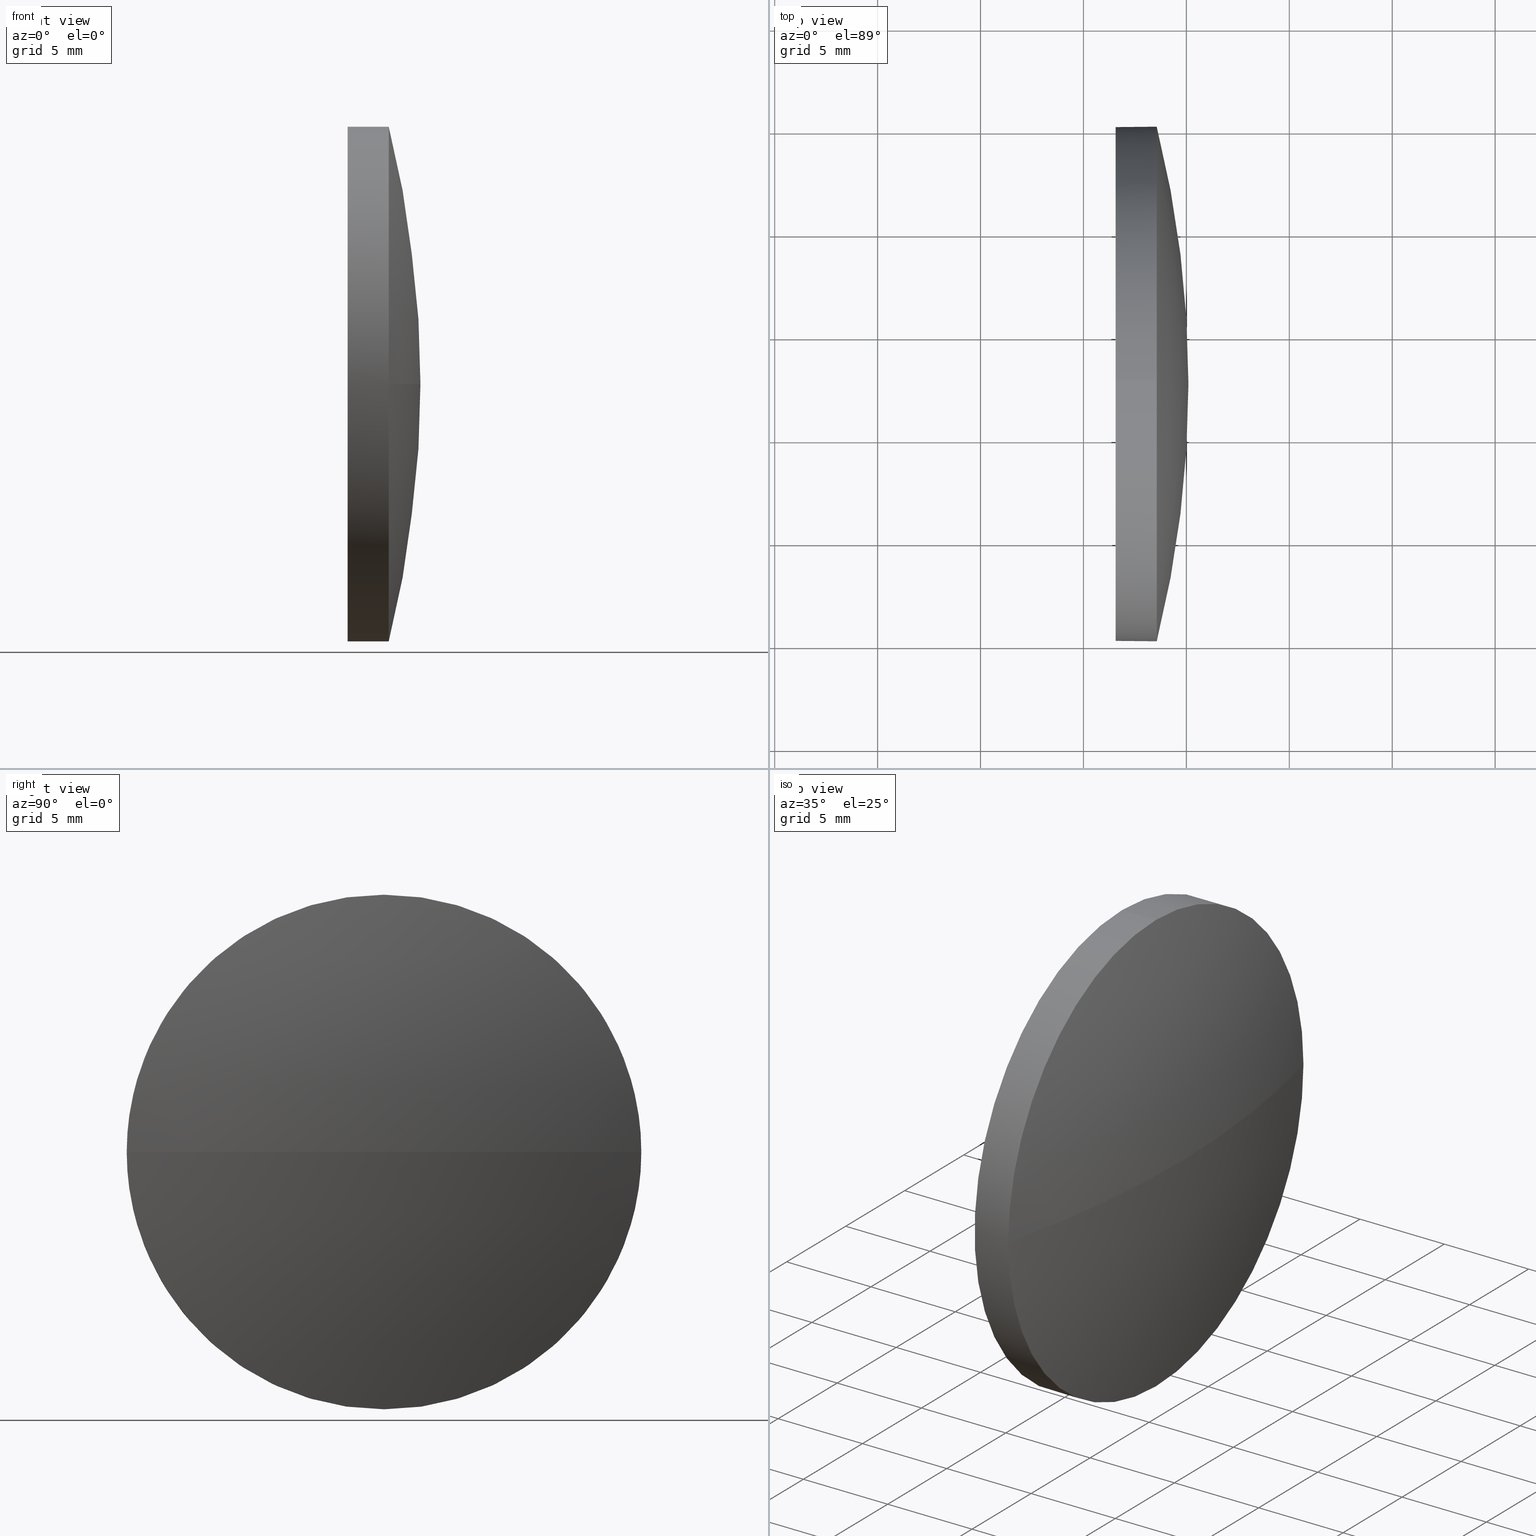
[diagram: canonical four-view strip — front | top / right | iso, engineering-drawing reading convention]
A machine part, canonical four-view strip (front | top / right | iso — engineering-drawing reading convention). The complete STEP part file that produces these views, byte-faithful:
ISO-10303-21;
HEADER;
FILE_DESCRIPTION (( 'STEP AP214' ),
    '1' );
FILE_NAME ('100216.STEP',
    '2019-05-24T01:17:39',
    ( '' ),
    ( '' ),
    'SwSTEP 2.0',
    'SolidWorks 2016',
    '' );
FILE_SCHEMA (( 'AUTOMOTIVE_DESIGN' ));
ENDSEC;

DATA;
#1 = SPHERICAL_SURFACE ( 'NONE', #51, 51.50051948051950700 ) ;
#2 = ORIENTED_EDGE ( 'NONE', *, *, #127, .T. ) ;
#3 =( LENGTH_UNIT ( ) NAMED_UNIT ( * ) SI_UNIT ( .MILLI., .METRE. ) );
#4 = STYLED_ITEM ( 'NONE', ( #47 ), #111 ) ;
#5 = DIRECTION ( 'NONE',  ( -1.000000000000000000, -0.0000000000000000000, -0.0000000000000000000 ) ) ;
#6 = DIRECTION ( 'NONE',  ( 0.0000000000000000000, 0.0000000000000000000, 1.000000000000000000 ) ) ;
#7 = CARTESIAN_POINT ( 'NONE',  ( 8.599504782206111000, 32.62964536423902500, 0.0000000000000000000 ) ) ;
#8 = CARTESIAN_POINT ( 'NONE',  ( 8.599504782206111000, 32.62964536423902500, 0.0000000000000000000 ) ) ;
#9 = FILL_AREA_STYLE_COLOUR ( '', #122 ) ;
#10 = ORIENTED_EDGE ( 'NONE', *, *, #166, .T. ) ;
#11 = AXIS2_PLACEMENT_3D ( 'NONE', #85, #87, #53 ) ;
#12 = AXIS2_PLACEMENT_3D ( 'NONE', #135, #120, #161 ) ;
#13 = DIRECTION ( 'NONE',  ( 0.0000000000000000000, 1.000000000000000000, 1.224646799147353200E-016 ) ) ;
#14 = PRESENTATION_STYLE_ASSIGNMENT (( #64 ) ) ;
#15 = PRODUCT_RELATED_PRODUCT_CATEGORY ( 'part', '', ( #27 ) ) ;
#16 = EDGE_CURVE ( 'NONE', #125, #37, #42, .T. ) ;
#17 = DIRECTION ( 'NONE',  ( 0.0000000000000000000, 1.000000000000000000, 0.0000000000000000000 ) ) ;
#18 = CARTESIAN_POINT ( 'NONE',  ( 56.56002426272561900, 32.62964536423902500, 0.0000000000000000000 ) ) ;
#19 = CARTESIAN_POINT ( 'NONE',  ( 54.53091668428863400, 32.62964536423902500, 12.49999999999999600 ) ) ;
#20 = DIRECTION ( 'NONE',  ( 1.000000000000000000, 0.0000000000000000000, 0.0000000000000000000 ) ) ;
#21 = ORIENTED_EDGE ( 'NONE', *, *, #109, .F. ) ;
#22 = EDGE_CURVE ( 'NONE', #89, #159, #174, .T. ) ;
#23 = SPHERICAL_SURFACE ( 'NONE', #102, 51.50051948051950700 ) ;
#24 = ORIENTED_EDGE ( 'NONE', *, *, #16, .T. ) ;
#25 = STYLED_ITEM ( 'NONE', ( #14 ), #184 ) ;
#26 = SHAPE_DEFINITION_REPRESENTATION ( #103, #184 ) ;
#27 = PRODUCT ( '100216', '100216', '', ( #78 ) ) ;
#28 = ORIENTED_EDGE ( 'NONE', *, *, #180, .F. ) ;
#29 = UNCERTAINTY_MEASURE_WITH_UNIT (LENGTH_MEASURE( 1.000000000000000100E-005 ), #3, 'distance_accuracy_value', 'NONE');
#30 = AXIS2_PLACEMENT_3D ( 'NONE', #169, #38, #20 ) ;
#31 = CARTESIAN_POINT ( 'NONE',  ( 56.56002426272561900, 32.62964536423902500, 0.0000000000000000000 ) ) ;
#32 = EDGE_CURVE ( 'NONE', #91, #37, #70, .T. ) ;
#33 = PLANE ( 'NONE',  #164 ) ;
#34 = COLOUR_RGB ( '',1.000000000000000000, 1.000000000000000000, 1.000000000000000000 ) ;
#35 =( NAMED_UNIT ( * ) PLANE_ANGLE_UNIT ( ) SI_UNIT ( $, .RADIAN. ) );
#36 =( NAMED_UNIT ( * ) PLANE_ANGLE_UNIT ( ) SI_UNIT ( $, .RADIAN. ) );
#37 = VERTEX_POINT ( 'NONE', #177 ) ;
#38 = DIRECTION ( 'NONE',  ( 0.0000000000000000000, 0.0000000000000000000, 1.000000000000000000 ) ) ;
#39 = ADVANCED_FACE ( 'NONE', ( #77 ), #23, .T. ) ;
#40 = CIRCLE ( 'NONE', #106, 12.49999999999999600 ) ;
#41 =( GEOMETRIC_REPRESENTATION_CONTEXT ( 3 ) GLOBAL_UNCERTAINTY_ASSIGNED_CONTEXT ( ( #69 ) ) GLOBAL_UNIT_ASSIGNED_CONTEXT ( ( #146, #35, #143 ) ) REPRESENTATION_CONTEXT ( 'NONE', 'WORKASPACE' ) );
#42 = CIRCLE ( 'NONE', #58, 12.49999999999999600 ) ;
#43 = UNCERTAINTY_MEASURE_WITH_UNIT (LENGTH_MEASURE( 1.000000000000000100E-005 ), #80, 'distance_accuracy_value', 'NONE');
#44 = FACE_OUTER_BOUND ( 'NONE', #186, .T. ) ;
#45 = ORIENTED_EDGE ( 'NONE', *, *, #48, .T. ) ;
#46 = MECHANICAL_DESIGN_GEOMETRIC_PRESENTATION_REPRESENTATION (  '', ( #4 ), #119 ) ;
#47 = PRESENTATION_STYLE_ASSIGNMENT (( #155 ) ) ;
#48 = EDGE_CURVE ( 'NONE', #91, #159, #148, .T. ) ;
#49 = SURFACE_STYLE_FILL_AREA ( #131 ) ;
#50 = ORIENTED_EDGE ( 'NONE', *, *, #166, .F. ) ;
#51 = AXIS2_PLACEMENT_3D ( 'NONE', #7, #93, #17 ) ;
#52 = CARTESIAN_POINT ( 'NONE',  ( 58.56002426272561900, 32.62964536423902500, 0.0000000000000000000 ) ) ;
#53 = DIRECTION ( 'NONE',  ( 0.0000000000000000000, 0.0000000000000000000, 1.000000000000000000 ) ) ;
#54 = CARTESIAN_POINT ( 'NONE',  ( 58.56002426272561900, 32.62964536423902500, -12.49999999999999600 ) ) ;
#55 = SURFACE_SIDE_STYLE ('',( #49 ) ) ;
#56 = MECHANICAL_DESIGN_GEOMETRIC_PRESENTATION_REPRESENTATION (  '', ( #25 ), #132 ) ;
#57 = DIRECTION ( 'NONE',  ( -0.0000000000000000000, 0.0000000000000000000, -1.000000000000000000 ) ) ;
#58 = AXIS2_PLACEMENT_3D ( 'NONE', #82, #160, #134 ) ;
#59 = ORIENTED_EDGE ( 'NONE', *, *, #22, .T. ) ;
#60 = DIRECTION ( 'NONE',  ( -1.000000000000000000, -0.0000000000000000000, -0.0000000000000000000 ) ) ;
#61 = CARTESIAN_POINT ( 'NONE',  ( 56.56002426272561900, 32.62964536423902500, 12.49999999999999600 ) ) ;
#62 = CARTESIAN_POINT ( 'NONE',  ( 60.10002426272561800, 32.62964536423902500, 0.0000000000000000000 ) ) ;
#63 = APPLICATION_CONTEXT ( 'automotive_design' ) ;
#64 = SURFACE_STYLE_USAGE ( .BOTH. , #55 ) ;
#65 = EDGE_LOOP ( 'NONE', ( #10, #96, #154, #28, #59 ) ) ;
#66 = ORIENTED_EDGE ( 'NONE', *, *, #48, .F. ) ;
#67 = AXIS2_PLACEMENT_3D ( 'NONE', #52, #60, #156 ) ;
#68 = DIRECTION ( 'NONE',  ( 0.0000000000000000000, 1.000000000000000000, 0.0000000000000000000 ) ) ;
#69 = UNCERTAINTY_MEASURE_WITH_UNIT (LENGTH_MEASURE( 1.000000000000000100E-005 ), #146, 'distance_accuracy_value', 'NONE');
#70 = CIRCLE ( 'NONE', #152, 51.50051948051950700 ) ;
#71 = SURFACE_STYLE_FILL_AREA ( #157 ) ;
#72 = ORIENTED_EDGE ( 'NONE', *, *, #180, .T. ) ;
#73 = VERTEX_POINT ( 'NONE', #150 ) ;
#74 = DIRECTION ( 'NONE',  ( 0.0000000000000000000, 0.0000000000000000000, 1.000000000000000000 ) ) ;
#75 = CARTESIAN_POINT ( 'NONE',  ( 54.53091668428863400, 32.62964536423902500, 0.0000000000000000000 ) ) ;
#76 =( NAMED_UNIT ( * ) SI_UNIT ( $, .STERADIAN. ) SOLID_ANGLE_UNIT ( ) );
#77 = FACE_OUTER_BOUND ( 'NONE', #176, .T. ) ;
#78 = PRODUCT_CONTEXT ( 'NONE', #63, 'mechanical' ) ;
#79 = CIRCLE ( 'NONE', #67, 12.49999999999999600 ) ;
#80 =( LENGTH_UNIT ( ) NAMED_UNIT ( * ) SI_UNIT ( .MILLI., .METRE. ) );
#81 = ORIENTED_EDGE ( 'NONE', *, *, #22, .F. ) ;
#82 = CARTESIAN_POINT ( 'NONE',  ( 58.56002426272561900, 32.62964536423902500, 0.0000000000000000000 ) ) ;
#83 = ORIENTED_EDGE ( 'NONE', *, *, #32, .F. ) ;
#84 = DIRECTION ( 'NONE',  ( 1.000000000000000000, 0.0000000000000000000, 0.0000000000000000000 ) ) ;
#85 = CARTESIAN_POINT ( 'NONE',  ( 56.56002426272561900, 32.62964536423902500, 0.0000000000000000000 ) ) ;
#86 = CARTESIAN_POINT ( 'NONE',  ( 58.56002426272561900, 32.62964536423902500, 0.0000000000000000000 ) ) ;
#87 = DIRECTION ( 'NONE',  ( -1.000000000000000000, -0.0000000000000000000, -0.0000000000000000000 ) ) ;
#88 = ADVANCED_FACE ( 'NONE', ( #140 ), #100, .T. ) ;
#89 = VERTEX_POINT ( 'NONE', #115 ) ;
#90 = EDGE_CURVE ( 'NONE', #73, #163, #185, .T. ) ;
#91 = VERTEX_POINT ( 'NONE', #62 ) ;
#92 = ORIENTED_EDGE ( 'NONE', *, *, #121, .T. ) ;
#93 = DIRECTION ( 'NONE',  ( -0.0000000000000000000, 0.0000000000000000000, -1.000000000000000000 ) ) ;
#94 = DIRECTION ( 'NONE',  ( 0.0000000000000000000, 0.0000000000000000000, 1.000000000000000000 ) ) ;
#95 = ADVANCED_FACE ( 'NONE', ( #139 ), #33, .F. ) ;
#96 = ORIENTED_EDGE ( 'NONE', *, *, #109, .T. ) ;
#97 = VECTOR ( 'NONE', #117, 1000.000000000000000 ) ;
#98 = CARTESIAN_POINT ( 'NONE',  ( 54.53091668428863400, 32.62964536423902500, 0.0000000000000000000 ) ) ;
#99 = CARTESIAN_POINT ( 'NONE',  ( 8.599504782206111000, 32.62964536423902500, 0.0000000000000000000 ) ) ;
#100 = CYLINDRICAL_SURFACE ( 'NONE', #165, 12.49999999999999600 ) ;
#101 = DIRECTION ( 'NONE',  ( 0.0000000000000000000, 0.0000000000000000000, 1.000000000000000000 ) ) ;
#102 = AXIS2_PLACEMENT_3D ( 'NONE', #124, #57, #68 ) ;
#103 = PRODUCT_DEFINITION_SHAPE ( 'NONE', 'NONE',  #167 ) ;
#104 = CYLINDRICAL_SURFACE ( 'NONE', #151, 12.49999999999999600 ) ;
#105 = EDGE_LOOP ( 'NONE', ( #92, #181 ) ) ;
#106 = AXIS2_PLACEMENT_3D ( 'NONE', #86, #113, #6 ) ;
#107 = PRODUCT_DEFINITION_CONTEXT ( 'detailed design', #173, 'design' ) ;
#108 = AXIS2_PLACEMENT_3D ( 'NONE', #18, #130, #74 ) ;
#109 = EDGE_CURVE ( 'NONE', #125, #73, #144, .T. ) ;
#110 = VECTOR ( 'NONE', #5, 1000.000000000000000 ) ;
#111 = MANIFOLD_SOLID_BREP ( '��ת1', #133 ) ;
#112 = ORIENTED_EDGE ( 'NONE', *, *, #90, .F. ) ;
#113 = DIRECTION ( 'NONE',  ( -1.000000000000000000, -0.0000000000000000000, -0.0000000000000000000 ) ) ;
#114 = SURFACE_SIDE_STYLE ('',( #71 ) ) ;
#115 = CARTESIAN_POINT ( 'NONE',  ( 58.56002426272561900, 32.62964536423902500, 12.49999999999999600 ) ) ;
#116 = AXIS2_PLACEMENT_3D ( 'NONE', #8, #123, #162 ) ;
#117 = DIRECTION ( 'NONE',  ( -1.000000000000000000, -0.0000000000000000000, -0.0000000000000000000 ) ) ;
#118 = APPLICATION_PROTOCOL_DEFINITION ( 'draft international standard', 'automotive_design', 1998, #173 ) ;
#119 =( GEOMETRIC_REPRESENTATION_CONTEXT ( 3 ) GLOBAL_UNCERTAINTY_ASSIGNED_CONTEXT ( ( #29 ) ) GLOBAL_UNIT_ASSIGNED_CONTEXT ( ( #3, #168, #76 ) ) REPRESENTATION_CONTEXT ( 'NONE', 'WORKASPACE' ) );
#120 = DIRECTION ( 'NONE',  ( -1.000000000000000000, -0.0000000000000000000, -0.0000000000000000000 ) ) ;
#121 = EDGE_CURVE ( 'NONE', #163, #73, #141, .T. ) ;
#122 = COLOUR_RGB ( '',1.000000000000000000, 1.000000000000000000, 1.000000000000000000 ) ;
#123 = DIRECTION ( 'NONE',  ( -0.0000000000000000000, 0.0000000000000000000, 1.000000000000000000 ) ) ;
#124 = CARTESIAN_POINT ( 'NONE',  ( 8.599504782206111000, 32.62964536423902500, 0.0000000000000000000 ) ) ;
#125 = VERTEX_POINT ( 'NONE', #54 ) ;
#126 = PRESENTATION_LAYER_ASSIGNMENT (  '', '', ( #4 ) ) ;
#127 = EDGE_CURVE ( 'NONE', #37, #89, #79, .T. ) ;
#128 = CARTESIAN_POINT ( 'NONE',  ( 58.56002426272561900, 45.12964536423902500, 0.0000000000000000000 ) ) ;
#129 = CARTESIAN_POINT ( 'NONE',  ( 54.53091668428863400, 32.62964536423902500, -12.49999999999999600 ) ) ;
#130 = DIRECTION ( 'NONE',  ( -1.000000000000000000, -0.0000000000000000000, -0.0000000000000000000 ) ) ;
#131 = FILL_AREA_STYLE ('',( #9 ) ) ;
#132 =( GEOMETRIC_REPRESENTATION_CONTEXT ( 3 ) GLOBAL_UNCERTAINTY_ASSIGNED_CONTEXT ( ( #43 ) ) GLOBAL_UNIT_ASSIGNED_CONTEXT ( ( #80, #36, #147 ) ) REPRESENTATION_CONTEXT ( 'NONE', 'WORKASPACE' ) );
#133 = CLOSED_SHELL ( 'NONE', ( #88, #39, #145, #171, #95 ) ) ;
#134 = DIRECTION ( 'NONE',  ( 0.0000000000000000000, 0.0000000000000000000, 1.000000000000000000 ) ) ;
#135 = CARTESIAN_POINT ( 'NONE',  ( 58.56002426272561900, 32.62964536423902500, 0.0000000000000000000 ) ) ;
#136 = ORIENTED_EDGE ( 'NONE', *, *, #16, .F. ) ;
#137 = ORIENTED_EDGE ( 'NONE', *, *, #32, .T. ) ;
#138 = PRESENTATION_LAYER_ASSIGNMENT (  '', '', ( #25 ) ) ;
#139 = FACE_OUTER_BOUND ( 'NONE', #105, .T. ) ;
#140 = FACE_OUTER_BOUND ( 'NONE', #65, .T. ) ;
#141 = CIRCLE ( 'NONE', #11, 12.49999999999999600 ) ;
#142 = DIRECTION ( 'NONE',  ( -1.000000000000000000, -0.0000000000000000000, -0.0000000000000000000 ) ) ;
#143 =( NAMED_UNIT ( * ) SI_UNIT ( $, .STERADIAN. ) SOLID_ANGLE_UNIT ( ) );
#144 = LINE ( 'NONE', #129, #110 ) ;
#145 = ADVANCED_FACE ( 'NONE', ( #44 ), #1, .T. ) ;
#146 =( LENGTH_UNIT ( ) NAMED_UNIT ( * ) SI_UNIT ( .MILLI., .METRE. ) );
#147 =( NAMED_UNIT ( * ) SI_UNIT ( $, .STERADIAN. ) SOLID_ANGLE_UNIT ( ) );
#148 = CIRCLE ( 'NONE', #116, 51.50051948051950700 ) ;
#149 = EDGE_LOOP ( 'NONE', ( #21, #24, #2, #72, #112 ) ) ;
#150 = CARTESIAN_POINT ( 'NONE',  ( 56.56002426272561900, 32.62964536423902500, -12.49999999999999600 ) ) ;
#151 = AXIS2_PLACEMENT_3D ( 'NONE', #75, #142, #94 ) ;
#152 = AXIS2_PLACEMENT_3D ( 'NONE', #99, #153, #13 ) ;
#153 = DIRECTION ( 'NONE',  ( 0.0000000000000000000, 1.224646799147353200E-016, -1.000000000000000000 ) ) ;
#154 = ORIENTED_EDGE ( 'NONE', *, *, #121, .F. ) ;
#155 = SURFACE_STYLE_USAGE ( .BOTH. , #114 ) ;
#156 = DIRECTION ( 'NONE',  ( 0.0000000000000000000, 0.0000000000000000000, 1.000000000000000000 ) ) ;
#157 = FILL_AREA_STYLE ('',( #172 ) ) ;
#158 = APPLICATION_PROTOCOL_DEFINITION ( 'draft international standard', 'automotive_design', 1998, #63 ) ;
#159 = VERTEX_POINT ( 'NONE', #128 ) ;
#160 = DIRECTION ( 'NONE',  ( -1.000000000000000000, -0.0000000000000000000, -0.0000000000000000000 ) ) ;
#161 = DIRECTION ( 'NONE',  ( 0.0000000000000000000, 0.0000000000000000000, 1.000000000000000000 ) ) ;
#162 = DIRECTION ( 'NONE',  ( 1.000000000000000000, 0.0000000000000000000, 0.0000000000000000000 ) ) ;
#163 = VERTEX_POINT ( 'NONE', #61 ) ;
#164 = AXIS2_PLACEMENT_3D ( 'NONE', #31, #84, #170 ) ;
#165 = AXIS2_PLACEMENT_3D ( 'NONE', #98, #179, #101 ) ;
#166 = EDGE_CURVE ( 'NONE', #159, #125, #40, .T. ) ;
#167 = PRODUCT_DEFINITION ( 'δ֪', '', #178, #107 ) ;
#168 =( NAMED_UNIT ( * ) PLANE_ANGLE_UNIT ( ) SI_UNIT ( $, .RADIAN. ) );
#169 = CARTESIAN_POINT ( 'NONE',  ( 0.0000000000000000000, 0.0000000000000000000, 0.0000000000000000000 ) ) ;
#170 = DIRECTION ( 'NONE',  ( 0.0000000000000000000, 0.0000000000000000000, -1.000000000000000000 ) ) ;
#171 = ADVANCED_FACE ( 'NONE', ( #175 ), #104, .T. ) ;
#172 = FILL_AREA_STYLE_COLOUR ( '', #34 ) ;
#173 = APPLICATION_CONTEXT ( 'automotive_design' ) ;
#174 = CIRCLE ( 'NONE', #12, 12.49999999999999600 ) ;
#175 = FACE_OUTER_BOUND ( 'NONE', #149, .T. ) ;
#176 = EDGE_LOOP ( 'NONE', ( #66, #137, #136, #50 ) ) ;
#177 = CARTESIAN_POINT ( 'NONE',  ( 58.56002426272561900, 20.12964536423902500, -1.530808498934191500E-015 ) ) ;
#178 = PRODUCT_DEFINITION_FORMATION_WITH_SPECIFIED_SOURCE ( '�κ�', '', #27, .NOT_KNOWN. ) ;
#179 = DIRECTION ( 'NONE',  ( -1.000000000000000000, -0.0000000000000000000, -0.0000000000000000000 ) ) ;
#180 = EDGE_CURVE ( 'NONE', #89, #163, #182, .T. ) ;
#181 = ORIENTED_EDGE ( 'NONE', *, *, #90, .T. ) ;
#182 = LINE ( 'NONE', #19, #97 ) ;
#183 = ORIENTED_EDGE ( 'NONE', *, *, #127, .F. ) ;
#184 = ADVANCED_BREP_SHAPE_REPRESENTATION ( '100216', ( #111, #30 ), #41 ) ;
#185 = CIRCLE ( 'NONE', #108, 12.49999999999999600 ) ;
#186 = EDGE_LOOP ( 'NONE', ( #83, #45, #81, #183 ) ) ;
ENDSEC;
END-ISO-10303-21;
